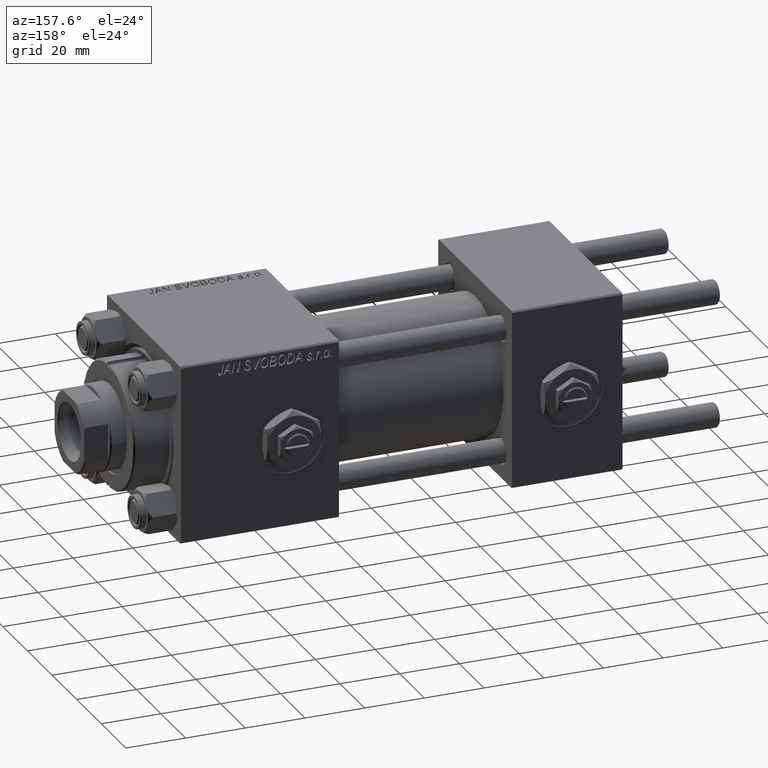
[diagram: clean part render]
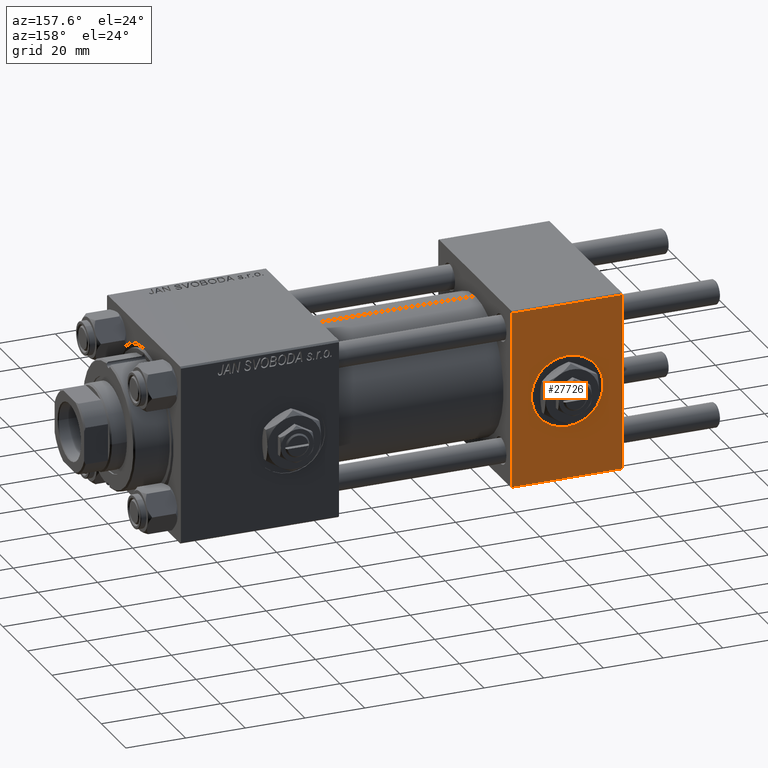
[diagram: same view with one face highlighted and labeled with its STEP entity id]
A machine part, auxiliary view. The second image highlights one B-rep face of the part: STEP entity #27726.
In plain terms, the highlighted planar face has unit normal (0, 1, 0).
Its self-contained STEP definition (entity closure, byte-faithful):
#71 = VECTOR ( 'NONE', #8332, 1000.000000000000000 ) ;
#1024 = VERTEX_POINT ( 'NONE', #16044 ) ;
#2220 = VECTOR ( 'NONE', #10304, 1000.000000000000000 ) ;
#2525 = CIRCLE ( 'NONE', #21045, 12.00000000000000178 ) ;
#2838 = CARTESIAN_POINT ( 'NONE',  ( 18.50000000000000000, 29.99999999999999289, 0.000000000000000000 ) ) ;
#6107 = EDGE_LOOP ( 'NONE', ( #19424, #41160 ) ) ;
#7364 = EDGE_CURVE ( 'NONE', #17278, #19981, #16793, .T. ) ;
#8332 = DIRECTION ( 'NONE',  ( 0.000000000000000000, 0.000000000000000000, -1.000000000000000000 ) ) ;
#10304 = DIRECTION ( 'NONE',  ( -1.000000000000000000, 0.000000000000000000, 0.000000000000000000 ) ) ;
#10342 = EDGE_CURVE ( 'NONE', #1024, #15810, #23402, .T. ) ;
#10409 = DIRECTION ( 'NONE',  ( 1.000000000000000000, 0.000000000000000000, 0.000000000000000000 ) ) ;
#11526 = CARTESIAN_POINT ( 'NONE',  ( 37.00000000000000000, 29.99999999999999289, 30.00000000000000000 ) ) ;
#12298 = CARTESIAN_POINT ( 'NONE',  ( 0.000000000000000000, 29.99999999999999289, 30.00000000000000000 ) ) ;
#13105 = FACE_OUTER_BOUND ( 'NONE', #34736, .T. ) ;
#14559 = ORIENTED_EDGE ( 'NONE', *, *, #10342, .T. ) ;
#15810 = VERTEX_POINT ( 'NONE', #37516 ) ;
#16044 = CARTESIAN_POINT ( 'NONE',  ( 37.00000000000000000, 29.99999999999999289, 29.50000000000000000 ) ) ;
#16793 = CIRCLE ( 'NONE', #41221, 12.00000000000000178 ) ;
#17278 = VERTEX_POINT ( 'NONE', #24832 ) ;
#18553 = CARTESIAN_POINT ( 'NONE',  ( 18.50000000000000000, 29.99999999999999289, 12.00000000000000178 ) ) ;
#19424 = ORIENTED_EDGE ( 'NONE', *, *, #31580, .F. ) ;
#19981 = VERTEX_POINT ( 'NONE', #18553 ) ;
#20463 = LINE ( 'NONE', #12298, #71 ) ;
#21023 = DIRECTION ( 'NONE',  ( 0.000000000000000000, -0.000000000000000000, 1.000000000000000000 ) ) ;
#21045 = AXIS2_PLACEMENT_3D ( 'NONE', #2838, #34229, #51094 ) ;
#21841 = VECTOR ( 'NONE', #27864, 1000.000000000000000 ) ;
#23139 = EDGE_CURVE ( 'NONE', #15810, #24428, #50646, .T. ) ;
#23402 = LINE ( 'NONE', #11526, #21841 ) ;
#24419 = ORIENTED_EDGE ( 'NONE', *, *, #23139, .T. ) ;
#24428 = VERTEX_POINT ( 'NONE', #28655 ) ;
#24832 = CARTESIAN_POINT ( 'NONE',  ( 18.50000000000000000, 29.99999999999999289, -12.00000000000000178 ) ) ;
#25800 = DIRECTION ( 'NONE',  ( 0.000000000000000000, 1.000000000000000000, 0.000000000000000000 ) ) ;
#25861 = CARTESIAN_POINT ( 'NONE',  ( 37.00000000000000000, 29.99999999999999289, -29.50000000000000000 ) ) ;
#26479 = CARTESIAN_POINT ( 'NONE',  ( 37.00000000000000000, 29.99999999999999289, 29.50000000000000000 ) ) ;
#27726 = ADVANCED_FACE ( 'NONE', ( #28918, #13105 ), #33133, .T. ) ;
#27864 = DIRECTION ( 'NONE',  ( 0.000000000000000000, 0.000000000000000000, -1.000000000000000000 ) ) ;
#28271 = ORIENTED_EDGE ( 'NONE', *, *, #30088, .T. ) ;
#28655 = CARTESIAN_POINT ( 'NONE',  ( 0.000000000000000000, 29.99999999999999289, -29.50000000000000000 ) ) ;
#28918 = FACE_BOUND ( 'NONE', #6107, .T. ) ;
#30088 = EDGE_CURVE ( 'NONE', #45429, #1024, #38881, .T. ) ;
#30549 = CARTESIAN_POINT ( 'NONE',  ( 18.50000000000000000, 29.99999999999999289, 0.000000000000000000 ) ) ;
#31580 = EDGE_CURVE ( 'NONE', #19981, #17278, #2525, .T. ) ;
#33133 = PLANE ( 'NONE',  #48673 ) ;
#34033 = EDGE_CURVE ( 'NONE', #45429, #24428, #20463, .T. ) ;
#34229 = DIRECTION ( 'NONE',  ( 0.000000000000000000, 1.000000000000000000, 0.000000000000000000 ) ) ;
#34736 = EDGE_LOOP ( 'NONE', ( #14559, #24419, #41363, #28271 ) ) ;
#37516 = CARTESIAN_POINT ( 'NONE',  ( 37.00000000000000000, 29.99999999999999289, -29.50000000000000000 ) ) ;
#37622 = CARTESIAN_POINT ( 'NONE',  ( 37.00000000000000000, 29.99999999999999289, 30.00000000000000000 ) ) ;
#38716 = DIRECTION ( 'NONE',  ( 0.000000000000000000, 0.000000000000000000, 1.000000000000000000 ) ) ;
#38881 = LINE ( 'NONE', #26479, #51309 ) ;
#41160 = ORIENTED_EDGE ( 'NONE', *, *, #7364, .F. ) ;
#41221 = AXIS2_PLACEMENT_3D ( 'NONE', #30549, #25800, #38716 ) ;
#41363 = ORIENTED_EDGE ( 'NONE', *, *, #34033, .F. ) ;
#45429 = VERTEX_POINT ( 'NONE', #47755 ) ;
#47755 = CARTESIAN_POINT ( 'NONE',  ( 0.000000000000000000, 29.99999999999999289, 29.50000000000000000 ) ) ;
#48673 = AXIS2_PLACEMENT_3D ( 'NONE', #37622, #49493, #21023 ) ;
#49493 = DIRECTION ( 'NONE',  ( -0.000000000000000000, 1.000000000000000000, 0.000000000000000000 ) ) ;
#50646 = LINE ( 'NONE', #25861, #2220 ) ;
#51094 = DIRECTION ( 'NONE',  ( 0.000000000000000000, 0.000000000000000000, 1.000000000000000000 ) ) ;
#51309 = VECTOR ( 'NONE', #10409, 1000.000000000000000 ) ;